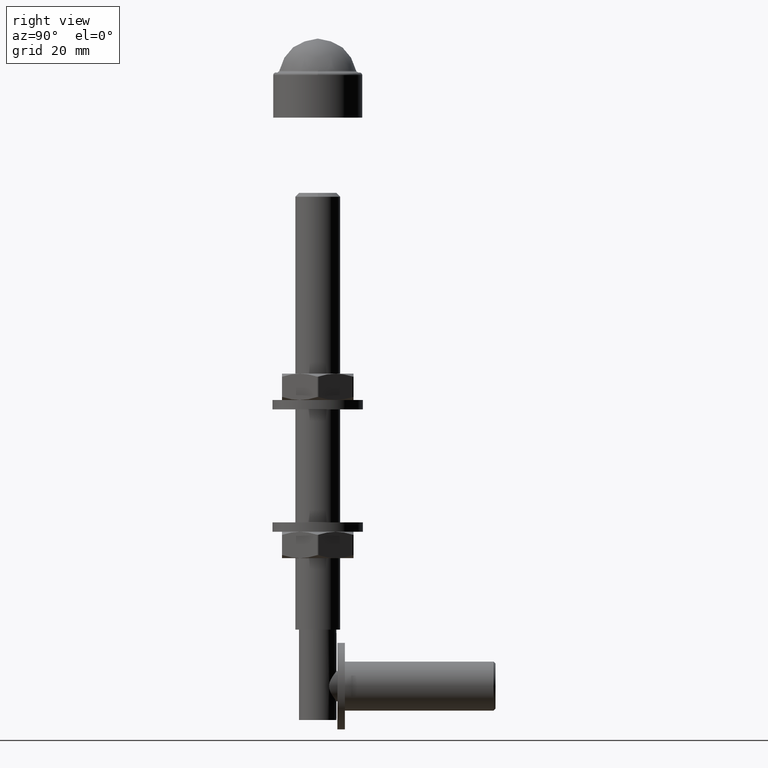
[diagram: clean part render]
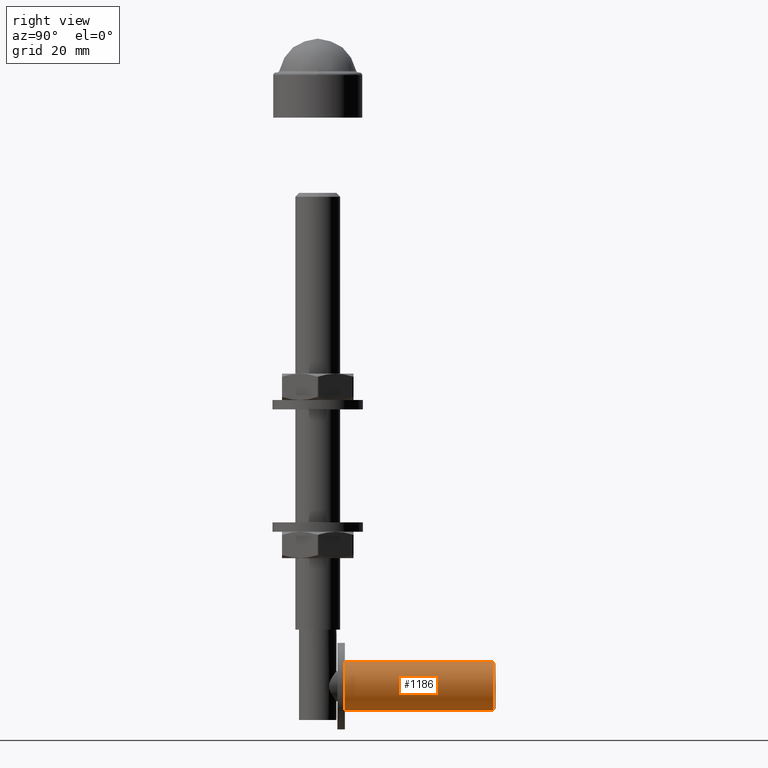
[diagram: same view with one face highlighted and labeled with its STEP entity id]
A machine part, right view. The second image highlights one B-rep face of the part: STEP entity #1186.
In plain terms, the highlighted cylindrical surface (bore or boss wall) has radius 6.5 mm, axis along (-0, -1, -0).
Its self-contained STEP definition (entity closure, byte-faithful):
#325 = DIRECTION ( 'NONE',  ( 0.000000000000000000, 0.000000000000000000, -1.000000000000000000 ) ) ;
#1186 = ADVANCED_FACE ( 'NONE', ( #3825, #6234 ), #14212, .T. ) ;
#2237 = VERTEX_POINT ( 'NONE', #6691 ) ;
#2779 = DIRECTION ( 'NONE',  ( 0.000000000000000000, 0.000000000000000000, 1.000000000000000000 ) ) ;
#3459 = EDGE_CURVE ( 'NONE', #13246, #13246, #11954, .T. ) ;
#3825 = FACE_OUTER_BOUND ( 'NONE', #13515, .T. ) ;
#4156 = CARTESIAN_POINT ( 'NONE',  ( 0.000000000000000000, 46.69999999999998863, -61.00000000000001421 ) ) ;
#4548 = DIRECTION ( 'NONE',  ( 0.000000000000000000, 0.000000000000000000, -1.000000000000000000 ) ) ;
#5219 = AXIS2_PLACEMENT_3D ( 'NONE', #14128, #8015, #4548 ) ;
#5968 = CARTESIAN_POINT ( 'NONE',  ( 0.000000000000000000, 7.199999999999980638, -61.00000000000001421 ) ) ;
#6223 = ORIENTED_EDGE ( 'NONE', *, *, #3459, .T. ) ;
#6234 = FACE_OUTER_BOUND ( 'NONE', #12810, .T. ) ;
#6691 = CARTESIAN_POINT ( 'NONE',  ( 0.000000000000000000, 7.199999999999980638, -67.50000000000002842 ) ) ;
#8015 = DIRECTION ( 'NONE',  ( -0.000000000000000000, -1.000000000000000000, -0.000000000000000000 ) ) ;
#8406 = AXIS2_PLACEMENT_3D ( 'NONE', #5968, #14338, #325 ) ;
#9058 = CARTESIAN_POINT ( 'NONE',  ( 0.000000000000000000, 46.69999999999998863, -54.50000000000000000 ) ) ;
#11954 = CIRCLE ( 'NONE', #13752, 6.500000000000012434 ) ;
#12810 = EDGE_LOOP ( 'NONE', ( #13504 ) ) ;
#12973 = CIRCLE ( 'NONE', #8406, 6.500000000000019540 ) ;
#13246 = VERTEX_POINT ( 'NONE', #9058 ) ;
#13374 = EDGE_CURVE ( 'NONE', #2237, #2237, #12973, .T. ) ;
#13504 = ORIENTED_EDGE ( 'NONE', *, *, #13374, .F. ) ;
#13515 = EDGE_LOOP ( 'NONE', ( #6223 ) ) ;
#13558 = DIRECTION ( 'NONE',  ( -0.000000000000000000, -1.000000000000000000, -0.000000000000000000 ) ) ;
#13752 = AXIS2_PLACEMENT_3D ( 'NONE', #4156, #13558, #2779 ) ;
#14128 = CARTESIAN_POINT ( 'NONE',  ( 0.000000000000000000, 0.000000000000000000, -61.00000000000001421 ) ) ;
#14212 = CYLINDRICAL_SURFACE ( 'NONE', #5219, 6.500000000000019540 ) ;
#14338 = DIRECTION ( 'NONE',  ( -0.000000000000000000, -1.000000000000000000, -0.000000000000000000 ) ) ;